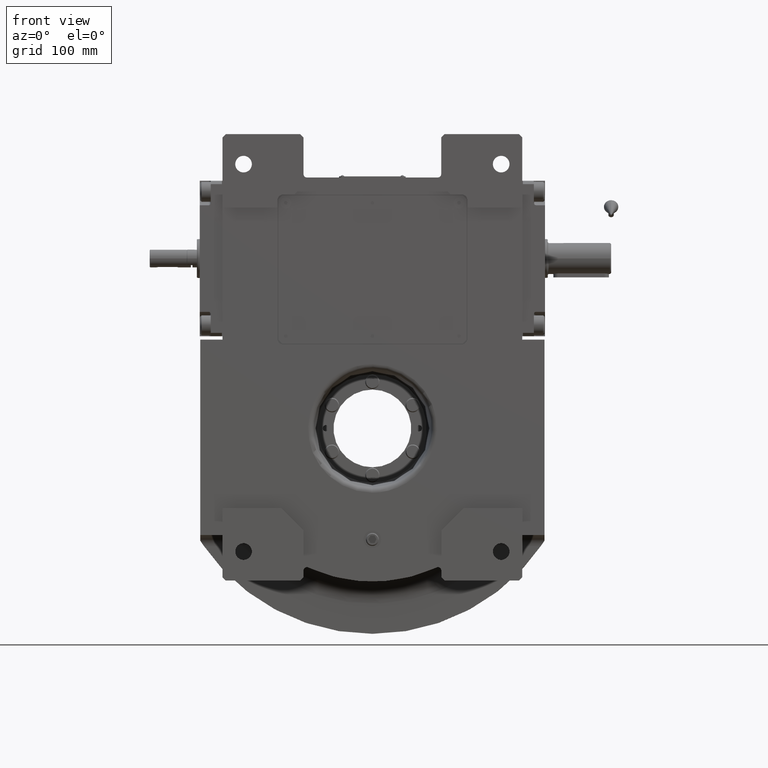
[diagram: clean part render]
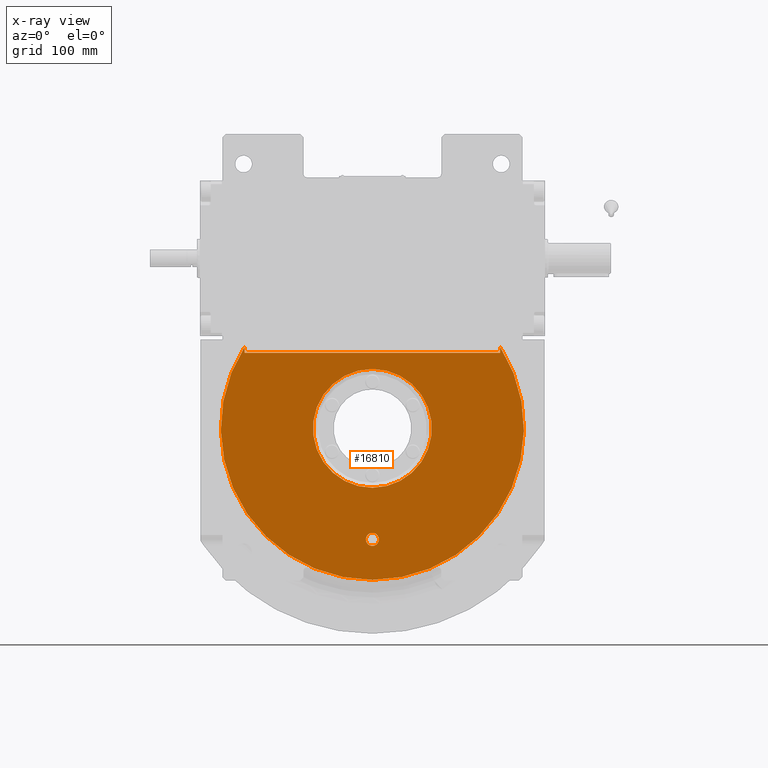
[diagram: x-ray — body ghosted, one internal face saturated and labeled with its STEP entity id]
A machine part, front view, then the same camera in x-ray: the body is ghosted and one INTERNAL B-rep face — a face not visible from any outside direction — is saturated and labeled: STEP entity #16810.
In plain terms, the highlighted planar face has unit normal (0, -1, 0).
Its self-contained STEP definition (entity closure, byte-faithful):
#725 = DIRECTION ( 'NONE',  ( 0.000000000000000000, 0.000000000000000000, 1.000000000000000000 ) ) ;
#763 = DIRECTION ( 'NONE',  ( 0.000000000000000000, 0.000000000000000000, 1.000000000000000000 ) ) ;
#4132 = VERTEX_POINT ( 'NONE', #8268 ) ;
#4339 = EDGE_CURVE ( 'NONE', #8539, #31363, #13441, .T. ) ;
#5311 = CARTESIAN_POINT ( 'NONE',  ( 0.000000000000000000, -63.00000000000000000, 0.000000000000000000 ) ) ;
#5765 = VECTOR ( 'NONE', #67408, 1000.000000000000000 ) ;
#6598 = DIRECTION ( 'NONE',  ( 0.000000000000000000, 1.000000000000000000, 0.000000000000000000 ) ) ;
#6660 = VECTOR ( 'NONE', #28067, 1000.000000000000000 ) ;
#6967 = VERTEX_POINT ( 'NONE', #17904 ) ;
#8042 = CARTESIAN_POINT ( 'NONE',  ( 0.000000000000000000, -63.00000000000000000, 0.000000000000000000 ) ) ;
#8231 = VERTEX_POINT ( 'NONE', #63443 ) ;
#8268 = CARTESIAN_POINT ( 'NONE',  ( 115.0000000000000000, -63.00000000000000000, 73.53400573884168523 ) ) ;
#8539 = VERTEX_POINT ( 'NONE', #24020 ) ;
#11626 = AXIS2_PLACEMENT_3D ( 'NONE', #26679, #17566, #43193 ) ;
#13197 = ORIENTED_EDGE ( 'NONE', *, *, #42062, .T. ) ;
#13441 = CIRCLE ( 'NONE', #14551, 5.875000000000000000 ) ;
#13774 = ORIENTED_EDGE ( 'NONE', *, *, #4339, .T. ) ;
#13860 = CIRCLE ( 'NONE', #11626, 5.875000000000000000 ) ;
#14551 = AXIS2_PLACEMENT_3D ( 'NONE', #26142, #17041, #59208 ) ;
#15784 = VECTOR ( 'NONE', #55280, 1000.000000000000000 ) ;
#16810 = ADVANCED_FACE ( 'NONE', ( #42321, #37753, #63439 ), #64850, .F. ) ;
#17041 = DIRECTION ( 'NONE',  ( -1.209434443846979996E-15, -1.000000000000000000, 1.209434443846979996E-15 ) ) ;
#17566 = DIRECTION ( 'NONE',  ( 0.000000000000000000, -1.000000000000000000, 0.000000000000000000 ) ) ;
#17904 = CARTESIAN_POINT ( 'NONE',  ( -115.0000000000000000, -63.00000000000000000, 67.99999999999997158 ) ) ;
#18585 = LINE ( 'NONE', #67066, #5765 ) ;
#19088 = EDGE_CURVE ( 'NONE', #64632, #40467, #42288, .T. ) ;
#19292 = AXIS2_PLACEMENT_3D ( 'NONE', #65664, #6598, #55454 ) ;
#20155 = ORIENTED_EDGE ( 'NONE', *, *, #24291, .T. ) ;
#20822 = EDGE_CURVE ( 'NONE', #41968, #22311, #26736, .T. ) ;
#21354 = CARTESIAN_POINT ( 'NONE',  ( -5.875000000000000000, -63.00000000000000000, -100.0000000000000000 ) ) ;
#21961 = DIRECTION ( 'NONE',  ( 0.000000000000000000, 1.836909530733564901E-16, 1.000000000000000000 ) ) ;
#22145 = ORIENTED_EDGE ( 'NONE', *, *, #19088, .F. ) ;
#22214 = AXIS2_PLACEMENT_3D ( 'NONE', #38983, #22491, #725 ) ;
#22311 = VERTEX_POINT ( 'NONE', #52447 ) ;
#22491 = DIRECTION ( 'NONE',  ( 0.000000000000000000, 1.000000000000000000, 0.000000000000000000 ) ) ;
#23551 = CARTESIAN_POINT ( 'NONE',  ( 0.000000000000000000, -63.00000000000000000, -53.50000000000000000 ) ) ;
#24020 = CARTESIAN_POINT ( 'NONE',  ( 5.875000000000000000, -63.00000000000000000, -100.0000000000000000 ) ) ;
#24291 = EDGE_CURVE ( 'NONE', #8231, #4132, #18585, .T. ) ;
#24837 = ORIENTED_EDGE ( 'NONE', *, *, #58376, .F. ) ;
#26142 = CARTESIAN_POINT ( 'NONE',  ( 0.000000000000000000, -63.00000000000000000, -100.0000000000000000 ) ) ;
#26515 = DIRECTION ( 'NONE',  ( 0.000000000000000000, -1.000000000000000000, 1.836909530733564901E-16 ) ) ;
#26679 = CARTESIAN_POINT ( 'NONE',  ( 0.000000000000000000, -63.00000000000000000, -100.0000000000000000 ) ) ;
#26736 = CIRCLE ( 'NONE', #43551, 136.5000000000000000 ) ;
#26785 = ORIENTED_EDGE ( 'NONE', *, *, #50734, .F. ) ;
#28067 = DIRECTION ( 'NONE',  ( 0.000000000000000000, 0.000000000000000000, 1.000000000000000000 ) ) ;
#29466 = DIRECTION ( 'NONE',  ( 0.000000000000000000, 1.000000000000000000, 0.000000000000000000 ) ) ;
#31363 = VERTEX_POINT ( 'NONE', #21354 ) ;
#31587 = CIRCLE ( 'NONE', #19292, 53.50000000000000000 ) ;
#35268 = EDGE_LOOP ( 'NONE', ( #13774, #51329 ) ) ;
#35445 = EDGE_CURVE ( 'NONE', #31363, #8539, #13860, .T. ) ;
#37753 = FACE_BOUND ( 'NONE', #35268, .T. ) ;
#38983 = CARTESIAN_POINT ( 'NONE',  ( 0.000000000000000000, -63.00000000000000000, 0.000000000000000000 ) ) ;
#39651 = CARTESIAN_POINT ( 'NONE',  ( -115.0000000000000000, -63.00000000000000000, 0.000000000000000000 ) ) ;
#40467 = VERTEX_POINT ( 'NONE', #23551 ) ;
#41968 = VERTEX_POINT ( 'NONE', #51201 ) ;
#42062 = EDGE_CURVE ( 'NONE', #4132, #41968, #54791, .T. ) ;
#42288 = CIRCLE ( 'NONE', #55758, 53.50000000000000000 ) ;
#42321 = FACE_OUTER_BOUND ( 'NONE', #43322, .T. ) ;
#43193 = DIRECTION ( 'NONE',  ( -1.000000000000000000, 0.000000000000000000, 0.000000000000000000 ) ) ;
#43322 = EDGE_LOOP ( 'NONE', ( #24837, #60812, #20155, #13197, #49000 ) ) ;
#43330 = LINE ( 'NONE', #59522, #15784 ) ;
#43551 = AXIS2_PLACEMENT_3D ( 'NONE', #5311, #48908, #763 ) ;
#45272 = LINE ( 'NONE', #39651, #6660 ) ;
#47604 = CARTESIAN_POINT ( 'NONE',  ( 0.000000000000000000, -63.00000000000000000, 2.534751534906250014E-14 ) ) ;
#48908 = DIRECTION ( 'NONE',  ( 0.000000000000000000, 1.000000000000000000, 0.000000000000000000 ) ) ;
#49000 = ORIENTED_EDGE ( 'NONE', *, *, #20822, .T. ) ;
#49326 = EDGE_CURVE ( 'NONE', #8231, #6967, #43330, .T. ) ;
#50734 = EDGE_CURVE ( 'NONE', #40467, #64632, #31587, .T. ) ;
#51201 = CARTESIAN_POINT ( 'NONE',  ( 0.000000000000000000, -63.00000000000000000, -136.5000000000000000 ) ) ;
#51329 = ORIENTED_EDGE ( 'NONE', *, *, #35445, .T. ) ;
#52447 = CARTESIAN_POINT ( 'NONE',  ( -115.0000000000000000, -63.00000000000000000, 73.53400573884168523 ) ) ;
#54791 = CIRCLE ( 'NONE', #22214, 136.5000000000000000 ) ;
#55280 = DIRECTION ( 'NONE',  ( -1.000000000000000000, 0.000000000000000000, 0.000000000000000000 ) ) ;
#55454 = DIRECTION ( 'NONE',  ( 0.000000000000000000, 0.000000000000000000, 1.000000000000000000 ) ) ;
#55758 = AXIS2_PLACEMENT_3D ( 'NONE', #8042, #29466, #62852 ) ;
#58376 = EDGE_CURVE ( 'NONE', #6967, #22311, #45272, .T. ) ;
#58535 = CARTESIAN_POINT ( 'NONE',  ( 6.551860375438339893E-15, -63.00000000000000000, 53.50000000000000000 ) ) ;
#59208 = DIRECTION ( 'NONE',  ( 1.000000000000000000, -2.362176648138630895E-15, 0.000000000000000000 ) ) ;
#59522 = CARTESIAN_POINT ( 'NONE',  ( 0.000000000000000000, -62.99999999999998579, 67.99999999999997158 ) ) ;
#60812 = ORIENTED_EDGE ( 'NONE', *, *, #49326, .F. ) ;
#62852 = DIRECTION ( 'NONE',  ( 0.000000000000000000, 0.000000000000000000, 1.000000000000000000 ) ) ;
#63439 = FACE_BOUND ( 'NONE', #67312, .T. ) ;
#63443 = CARTESIAN_POINT ( 'NONE',  ( 115.0000000000000000, -63.00000000000000000, 67.99999999999997158 ) ) ;
#64632 = VERTEX_POINT ( 'NONE', #58535 ) ;
#64850 = PLANE ( 'NONE',  #68354 ) ;
#65664 = CARTESIAN_POINT ( 'NONE',  ( 0.000000000000000000, -63.00000000000000000, 0.000000000000000000 ) ) ;
#67066 = CARTESIAN_POINT ( 'NONE',  ( 115.0000000000000000, -63.00000000000000000, 0.000000000000000000 ) ) ;
#67312 = EDGE_LOOP ( 'NONE', ( #26785, #22145 ) ) ;
#67408 = DIRECTION ( 'NONE',  ( 0.000000000000000000, 0.000000000000000000, 1.000000000000000000 ) ) ;
#68354 = AXIS2_PLACEMENT_3D ( 'NONE', #47604, #26515, #21961 ) ;